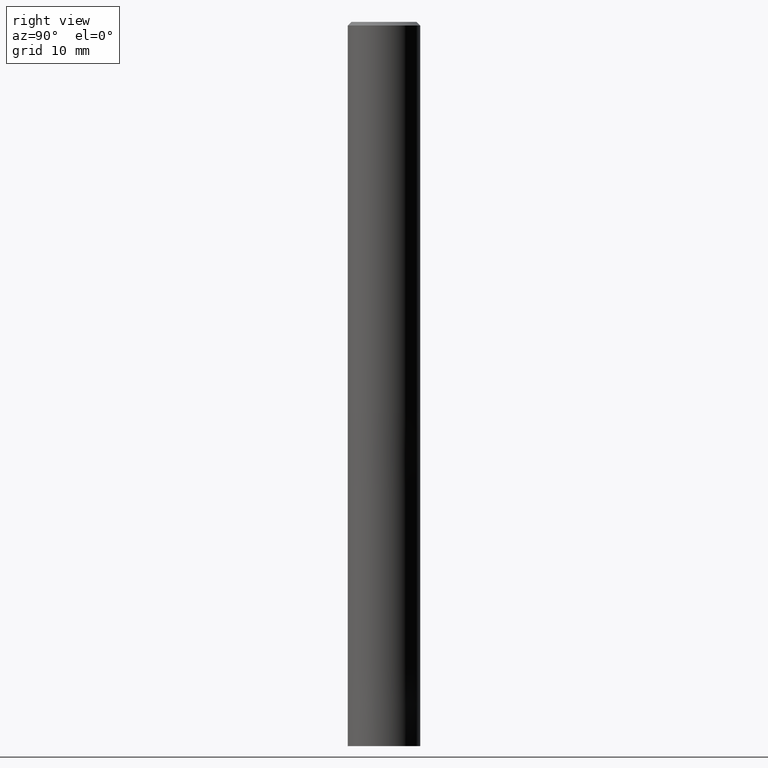
[diagram: clean part render]
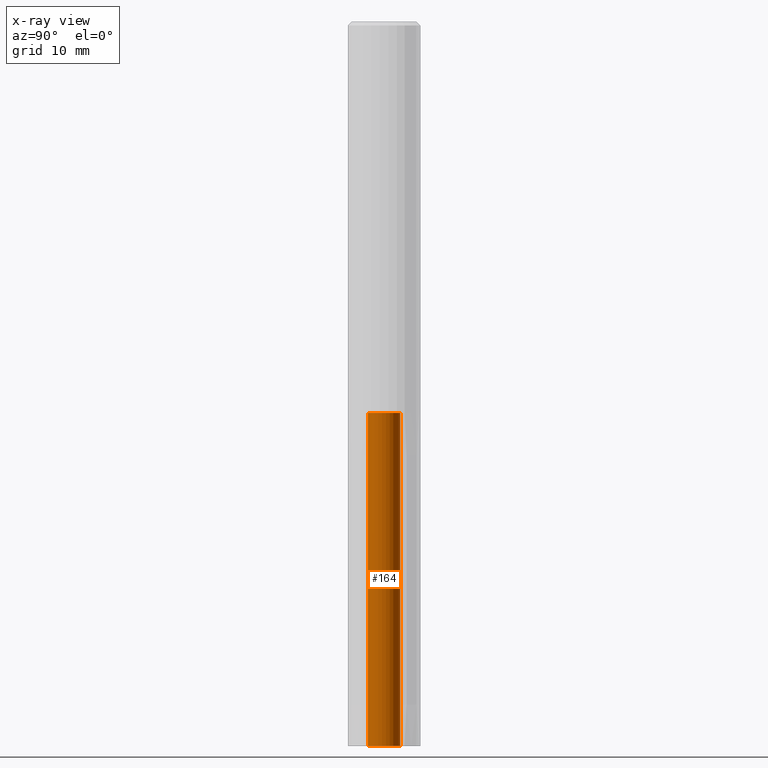
[diagram: x-ray — body ghosted, one internal face saturated and labeled with its STEP entity id]
A machine part, right view, then the same camera in x-ray: the body is ghosted and one INTERNAL B-rep face — a face not visible from any outside direction — is saturated and labeled: STEP entity #164.
In plain terms, the highlighted cylindrical surface (edge-blend (fillet) strip) has radius 2.25 mm, axis along (-0, -0, 1).
Its self-contained STEP definition (entity closure, byte-faithful):
#110=VERTEX_POINT('',#258);
#112=EDGE_CURVE('',#188,#110,#260,.T.);
#118=VERTEX_POINT('',#269);
#128=EDGE_CURVE('',#156,#188,#280,.T.);
#156=VERTEX_POINT('',#312);
#164=ADVANCED_FACE('',(#322),#323,.F.);
#188=VERTEX_POINT('',#349);
#202=EDGE_CURVE('',#156,#118,#364,.T.);
#204=EDGE_CURVE('',#110,#118,#366,.T.);
#258=CARTESIAN_POINT('',(2.75536429610035E-016,-2.25,-100.0));
#260=CIRCLE('',#417,2.25);
#269=CARTESIAN_POINT('',(2.75536429610035E-016,-2.25,-54.0));
#280=LINE('',#442,#443);
#312=CARTESIAN_POINT('',(0.0,2.25,-54.0));
#322=FACE_OUTER_BOUND('',#489,.T.);
#323=CYLINDRICAL_SURFACE('',#490,2.25);
#349=CARTESIAN_POINT('',(0.0,2.25,-100.0));
#364=CIRCLE('',#546,2.25);
#366=LINE('',#549,#550);
#417=AXIS2_PLACEMENT_3D('',#605,#606,#607);
#442=CARTESIAN_POINT('',(-2.75536429610035E-016,2.25,-77.0));
#443=VECTOR('',#634,1.0);
#489=EDGE_LOOP('',(#679,#680,#681,#682));
#490=AXIS2_PLACEMENT_3D('',#683,#684,#685);
#546=AXIS2_PLACEMENT_3D('',#737,#738,#739);
#549=CARTESIAN_POINT('',(2.75536429610035E-016,-2.25,-77.0));
#550=VECTOR('',#740,1.0);
#605=CARTESIAN_POINT('',(0.0,0.0,-100.0));
#606=DIRECTION('',(0.0,0.0,-1.0));
#607=DIRECTION('',(0.0,1.0,0.0));
#634=DIRECTION('',(0.0,-0.0,-1.0));
#679=ORIENTED_EDGE('',*,*,#128,.T.);
#680=ORIENTED_EDGE('',*,*,#112,.T.);
#681=ORIENTED_EDGE('',*,*,#204,.T.);
#682=ORIENTED_EDGE('',*,*,#202,.F.);
#683=CARTESIAN_POINT('',(0.0,0.0,-77.0));
#684=DIRECTION('',(-0.0,-0.0,1.0));
#685=DIRECTION('',(0.0,1.0,0.0));
#737=CARTESIAN_POINT('',(0.0,0.0,-54.0));
#738=DIRECTION('',(0.0,0.0,-1.0));
#739=DIRECTION('',(0.0,1.0,0.0));
#740=DIRECTION('',(0.0,-0.0,1.0));